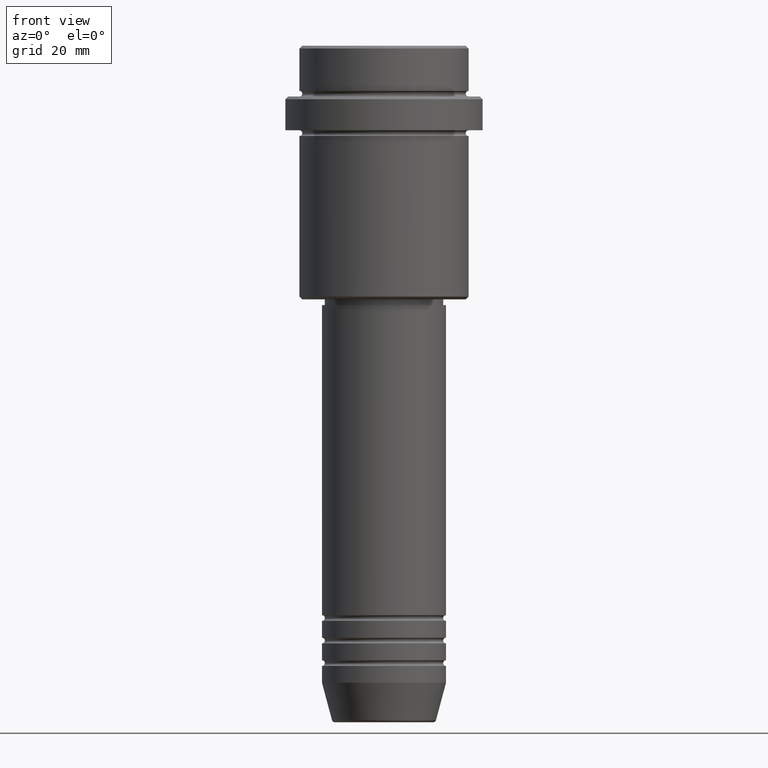
[diagram: clean part render]
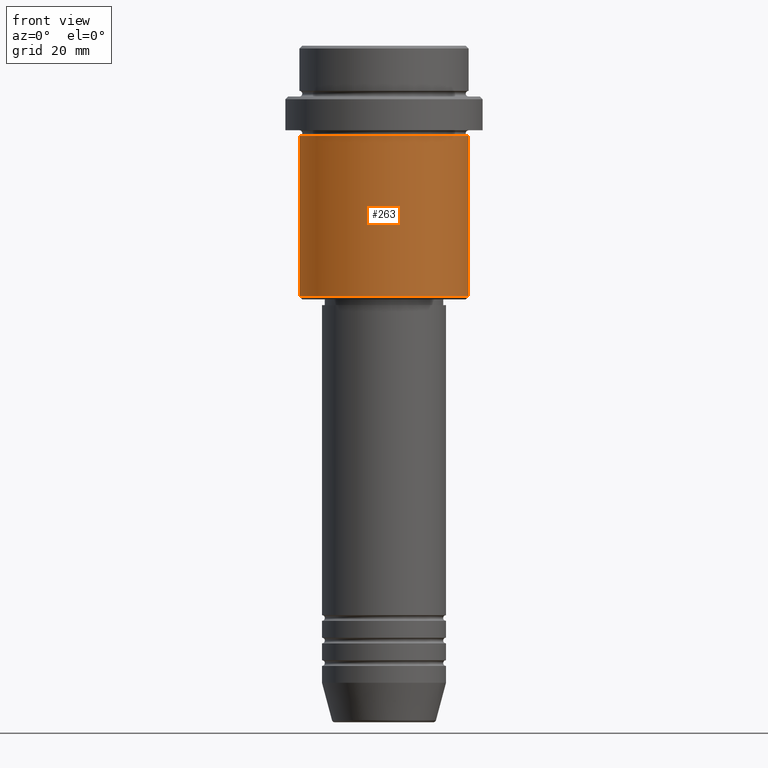
[diagram: same view with one face highlighted and labeled with its STEP entity id]
A machine part, front view. The second image highlights one B-rep face of the part: STEP entity #263.
In plain terms, the highlighted cylindrical surface (partial cylindrical patch) has radius 15 mm, axis along (-0, -0, 1).
Its self-contained STEP definition (entity closure, byte-faithful):
#6 = EDGE_CURVE ( 'NONE', #1385, #44, #659, .T. ) ;
#42 = DIRECTION ( 'NONE',  ( -0.000000000000000000, -0.000000000000000000, 1.000000000000000000 ) ) ;
#44 = VERTEX_POINT ( 'NONE', #515 ) ;
#59 = ORIENTED_EDGE ( 'NONE', *, *, #410, .T. ) ;
#78 = CARTESIAN_POINT ( 'NONE',  ( 0.000000000000000000, 0.000000000000000000, -44.50000000000001421 ) ) ;
#105 = CARTESIAN_POINT ( 'NONE',  ( 15.00000000000000000, 0.000000000000000000, -44.50000000000001421 ) ) ;
#120 = AXIS2_PLACEMENT_3D ( 'NONE', #921, #42, #1348 ) ;
#170 = DIRECTION ( 'NONE',  ( -1.000000000000000000, 0.000000000000000000, 0.000000000000000000 ) ) ;
#185 = VECTOR ( 'NONE', #1313, 1000.000000000000000 ) ;
#230 = VERTEX_POINT ( 'NONE', #105 ) ;
#231 = CIRCLE ( 'NONE', #1217, 15.00000000000000000 ) ;
#259 = ORIENTED_EDGE ( 'NONE', *, *, #420, .T. ) ;
#263 = ADVANCED_FACE ( 'NONE', ( #1197 ), #646, .T. ) ;
#282 = CARTESIAN_POINT ( 'NONE',  ( 15.00000000000000000, 0.000000000000000000, 0.000000000000000000 ) ) ;
#314 = ORIENTED_EDGE ( 'NONE', *, *, #6, .F. ) ;
#396 = DIRECTION ( 'NONE',  ( 1.000000000000000000, 0.000000000000000000, 0.000000000000000000 ) ) ;
#410 = EDGE_CURVE ( 'NONE', #412, #230, #231, .T. ) ;
#412 = VERTEX_POINT ( 'NONE', #599 ) ;
#420 = EDGE_CURVE ( 'NONE', #230, #44, #739, .T. ) ;
#429 = CARTESIAN_POINT ( 'NONE',  ( -15.00000000000000000, 1.836970198721029589E-15, 0.000000000000000000 ) ) ;
#430 = AXIS2_PLACEMENT_3D ( 'NONE', #1374, #1388, #396 ) ;
#514 = CARTESIAN_POINT ( 'NONE',  ( -15.00000000000000355, 1.836970198721029983E-15, -16.00000000000000000 ) ) ;
#515 = CARTESIAN_POINT ( 'NONE',  ( 15.00000000000000178, 0.000000000000000000, -16.00000000000000000 ) ) ;
#599 = CARTESIAN_POINT ( 'NONE',  ( -15.00000000000000000, 1.836970198721029589E-15, -44.50000000000001421 ) ) ;
#631 = EDGE_LOOP ( 'NONE', ( #679, #59, #259, #314 ) ) ;
#646 = CYLINDRICAL_SURFACE ( 'NONE', #120, 15.00000000000000000 ) ;
#655 = EDGE_CURVE ( 'NONE', #412, #1385, #1092, .T. ) ;
#659 = CIRCLE ( 'NONE', #430, 15.00000000000000178 ) ;
#679 = ORIENTED_EDGE ( 'NONE', *, *, #655, .F. ) ;
#739 = LINE ( 'NONE', #282, #1397 ) ;
#818 = DIRECTION ( 'NONE',  ( -0.000000000000000000, -0.000000000000000000, 1.000000000000000000 ) ) ;
#921 = CARTESIAN_POINT ( 'NONE',  ( 0.000000000000000000, 0.000000000000000000, 0.000000000000000000 ) ) ;
#1092 = LINE ( 'NONE', #429, #185 ) ;
#1155 = DIRECTION ( 'NONE',  ( -0.000000000000000000, -0.000000000000000000, 1.000000000000000000 ) ) ;
#1197 = FACE_OUTER_BOUND ( 'NONE', #631, .T. ) ;
#1217 = AXIS2_PLACEMENT_3D ( 'NONE', #78, #1155, #170 ) ;
#1313 = DIRECTION ( 'NONE',  ( -0.000000000000000000, -0.000000000000000000, 1.000000000000000000 ) ) ;
#1348 = DIRECTION ( 'NONE',  ( 1.000000000000000000, 0.000000000000000000, 0.000000000000000000 ) ) ;
#1374 = CARTESIAN_POINT ( 'NONE',  ( 0.000000000000000000, 0.000000000000000000, -16.00000000000000000 ) ) ;
#1385 = VERTEX_POINT ( 'NONE', #514 ) ;
#1388 = DIRECTION ( 'NONE',  ( -0.000000000000000000, -0.000000000000000000, 1.000000000000000000 ) ) ;
#1397 = VECTOR ( 'NONE', #818, 1000.000000000000000 ) ;